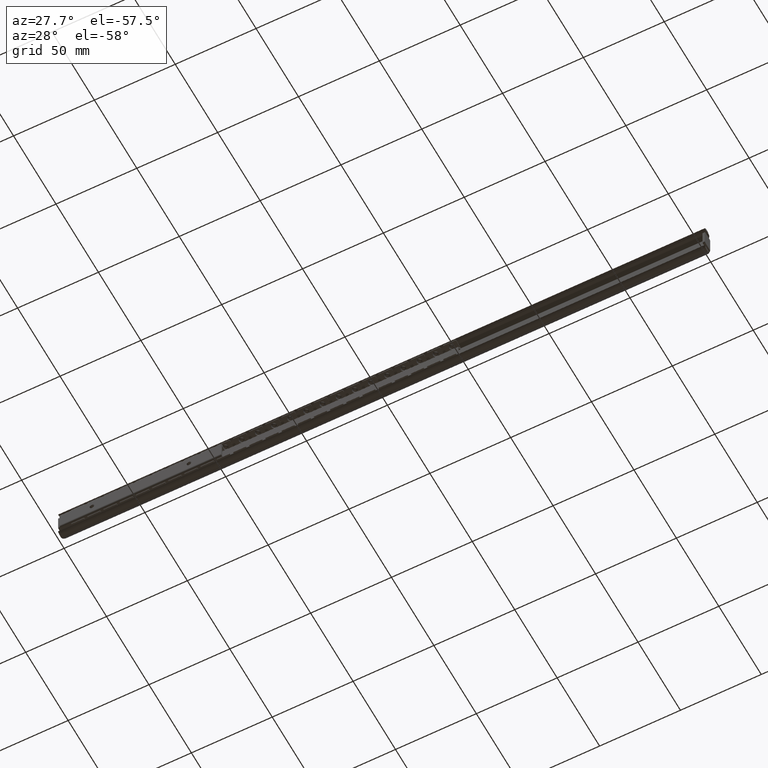
[diagram: clean part render]
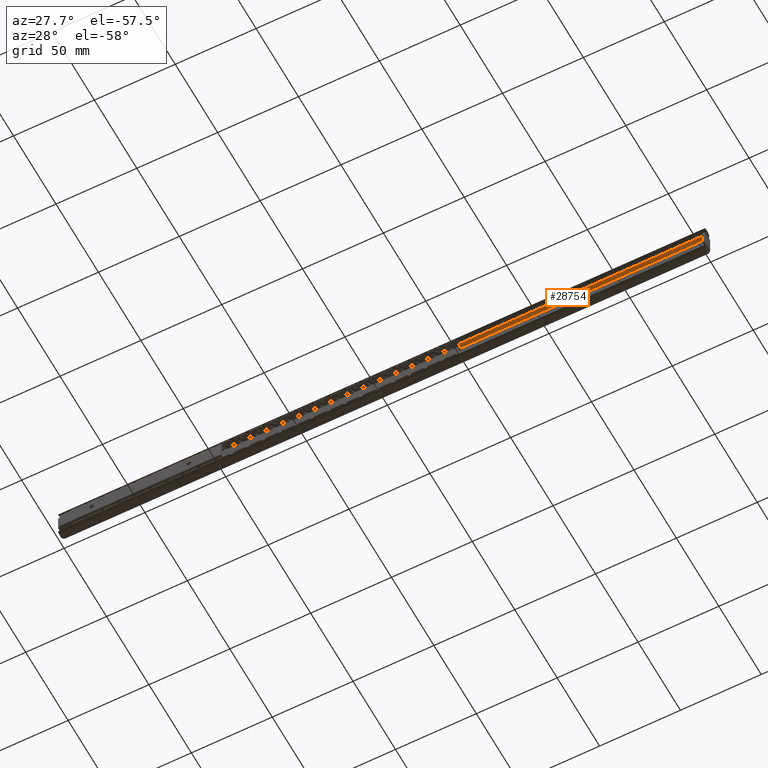
[diagram: same view with one face highlighted and labeled with its STEP entity id]
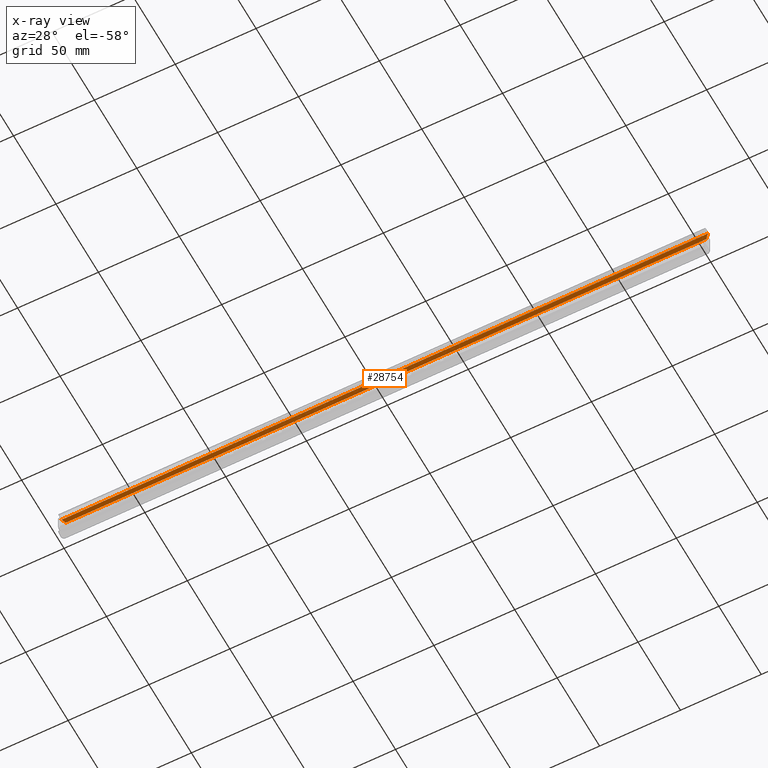
[diagram: x-ray of the same camera — body ghosted, the highlighted face saturated]
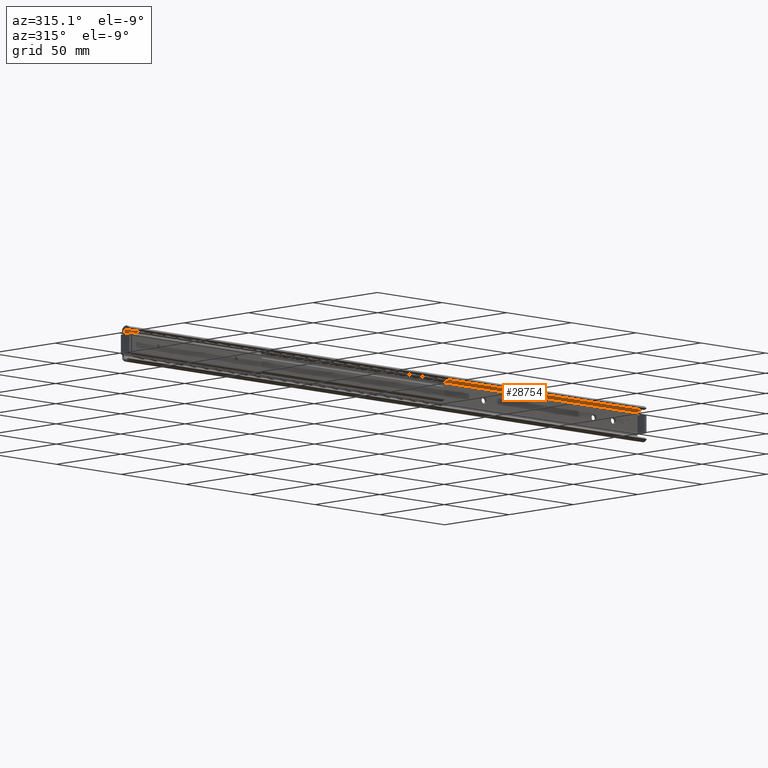
[diagram: same view with one face highlighted and labeled with its STEP entity id]
A machine part, auxiliary view. The second image highlights one B-rep face of the part: STEP entity #28754.
The next image is the same camera in x-ray: the body ghosted, the highlighted face saturated — about 0% of this face is hidden behind the body in this view.
A second angle (auxiliary view) of the same face is appended — the face is thin or edge-on in the first view.
In plain terms, the highlighted face is a freeform B-spline surface patch.
Its self-contained STEP definition (entity closure, byte-faithful):
#26865=CARTESIAN_POINT('',(399.707106890593480,-3.253435910360800,8.021320109406560));
#26866=VERTEX_POINT('',#26865);
#26872=CARTESIAN_POINT('',(398.692893000000030,-2.161378739668150,7.007106999999910));
#26873=VERTEX_POINT('',#26872);
#26874=CARTESIAN_POINT('',(398.692893000000030,-2.161378739668150,7.007106999999910));
#26875=CARTESIAN_POINT('',(399.707106890593480,-3.253435910360800,8.021320109406560));
#26876=QUASI_UNIFORM_CURVE('',1,(#26874,#26875),.UNSPECIFIED.,.F.,.U.);
#26877=EDGE_CURVE('',#26873,#26866,#26876,.T.);
#26932=CARTESIAN_POINT('',(399.833378964934980,-3.419691999999940,8.175725000000000));
#26933=VERTEX_POINT('',#26932);
#26967=CARTESIAN_POINT('',(399.707106890593480,-3.253435910360800,8.021320109406560));
#26968=CARTESIAN_POINT('',(399.777980897255820,-3.329750046362458,8.092194301175271));
#26969=CARTESIAN_POINT('',(399.833378964934920,-3.419691999999940,8.175725000000000));
#26977=(BOUNDED_CURVE()B_SPLINE_CURVE(2,(#26967,#26968,#26969),.UNSPECIFIED.,.F.,.U.)CURVE()GEOMETRIC_REPRESENTATION_ITEM()QUASI_UNIFORM_CURVE()RATIONAL_B_SPLINE_CURVE((1.0,0.995014372354447,1.0))REPRESENTATION_ITEM(''));
#26978=EDGE_CURVE('',#26866,#26933,#26977,.T.);
#27047=CARTESIAN_POINT('',(398.411066339638980,-1.559745614546865,6.448358967628300));
#27048=VERTEX_POINT('',#27047);
#27049=CARTESIAN_POINT('',(398.692893000000030,-2.161378739668340,7.007107000000094));
#27050=CARTESIAN_POINT('',(398.459942124211120,-1.910547935206939,6.774155951728683));
#27051=CARTESIAN_POINT('',(398.411066339638980,-1.559745614546865,6.448358967628300));
#27059=(BOUNDED_CURVE()B_SPLINE_CURVE(2,(#27049,#27050,#27051),.UNSPECIFIED.,.F.,.U.)CURVE()GEOMETRIC_REPRESENTATION_ITEM()QUASI_UNIFORM_CURVE()RATIONAL_B_SPLINE_CURVE((1.0,0.949786157455855,1.0))REPRESENTATION_ITEM(''));
#27060=EDGE_CURVE('',#26873,#27048,#27059,.T.);
#27836=CARTESIAN_POINT('',(1.307106999999974,-2.161378739668150,7.007106999999910));
#27837=VERTEX_POINT('',#27836);
#27843=CARTESIAN_POINT('',(0.292893109406735,-3.253435910360925,8.021320109406680));
#27844=VERTEX_POINT('',#27843);
#27845=CARTESIAN_POINT('',(0.292893109406735,-3.253435910360925,8.021320109406680));
#27846=CARTESIAN_POINT('',(1.307106999999974,-2.161378739668150,7.007106999999910));
#27847=QUASI_UNIFORM_CURVE('',1,(#27845,#27846),.UNSPECIFIED.,.F.,.U.);
#27848=EDGE_CURVE('',#27844,#27837,#27847,.T.);
#27911=CARTESIAN_POINT('',(0.166621035065040,-3.419691999999940,8.175725000000000));
#27912=VERTEX_POINT('',#27911);
#27913=CARTESIAN_POINT('',(0.166621035065040,-3.419691999999940,8.175725000000000));
#27914=CARTESIAN_POINT('',(0.222018993180538,-3.329750224245370,8.092194466378308));
#27915=CARTESIAN_POINT('',(0.292893109406735,-3.253435910360925,8.021320109406680));
#27923=(BOUNDED_CURVE()B_SPLINE_CURVE(2,(#27913,#27914,#27915),.UNSPECIFIED.,.F.,.U.)CURVE()GEOMETRIC_REPRESENTATION_ITEM()QUASI_UNIFORM_CURVE()RATIONAL_B_SPLINE_CURVE((1.0,0.995014391927818,1.0))REPRESENTATION_ITEM(''));
#27924=EDGE_CURVE('',#27912,#27844,#27923,.T.);
#28035=CARTESIAN_POINT('',(1.588933611782695,-1.559745614546865,6.448358967628300));
#28036=VERTEX_POINT('',#28035);
#28050=CARTESIAN_POINT('',(1.588933611782695,-1.559745614546865,6.448358967628300));
#28051=CARTESIAN_POINT('',(1.540057875788666,-1.910547935206730,6.774155951728489));
#28052=CARTESIAN_POINT('',(1.307106999999974,-2.161378739668143,7.007106999999911));
#28060=(BOUNDED_CURVE()B_SPLINE_CURVE(2,(#28050,#28051,#28052),.UNSPECIFIED.,.F.,.U.)CURVE()GEOMETRIC_REPRESENTATION_ITEM()QUASI_UNIFORM_CURVE()RATIONAL_B_SPLINE_CURVE((1.0,0.949786157455878,1.0))REPRESENTATION_ITEM(''));
#28061=EDGE_CURVE('',#28036,#27837,#28060,.T.);
#28458=CARTESIAN_POINT('',(398.411066339638980,-1.559745614546865,6.448358967628300));
#28459=CARTESIAN_POINT('',(1.588933611782695,-1.559745614546865,6.448358967628300));
#28460=QUASI_UNIFORM_CURVE('',1,(#28458,#28459),.UNSPECIFIED.,.F.,.U.);
#28461=EDGE_CURVE('',#27048,#28036,#28460,.T.);
#28735=CARTESIAN_POINT('',(-19.796731321009840,-3.512596344184834,8.262006923838309));
#28736=CARTESIAN_POINT('',(-19.796731321009840,-1.466841069403742,6.362077460268938));
#28737=CARTESIAN_POINT('',(419.796713454513620,-3.512596344184834,8.262006923838309));
#28738=CARTESIAN_POINT('',(419.796713454513620,-1.466841069403742,6.362077460268938));
#28739=B_SPLINE_SURFACE_WITH_KNOTS('',1,1,((#28735,#28737),(#28736,#28738)),.UNSPECIFIED.,.F.,.F.,.U.,(2,2),(2,2),(0.0,2.791925251655864),(0.0,439.593444775523380),.UNSPECIFIED.);
#28740=ORIENTED_EDGE('',*,*,#26877,.T.);
#28741=ORIENTED_EDGE('',*,*,#26978,.T.);
#28742=CARTESIAN_POINT('',(399.833378964934980,-3.419691999999940,8.175725000000000));
#28743=CARTESIAN_POINT('',(0.166621035065040,-3.419691999999940,8.175725000000000));
#28744=QUASI_UNIFORM_CURVE('',1,(#28742,#28743),.UNSPECIFIED.,.F.,.U.);
#28745=EDGE_CURVE('',#26933,#27912,#28744,.T.);
#28746=ORIENTED_EDGE('',*,*,#28745,.T.);
#28747=ORIENTED_EDGE('',*,*,#27924,.T.);
#28748=ORIENTED_EDGE('',*,*,#27848,.T.);
#28749=ORIENTED_EDGE('',*,*,#28061,.F.);
#28750=ORIENTED_EDGE('',*,*,#28461,.F.);
#28751=ORIENTED_EDGE('',*,*,#27060,.F.);
#28752=EDGE_LOOP('',(#28740,#28741,#28746,#28747,#28748,#28749,#28750,#28751));
#28753=FACE_OUTER_BOUND('',#28752,.T.);
#28754=ADVANCED_FACE('',(#28753),#28739,.T.);